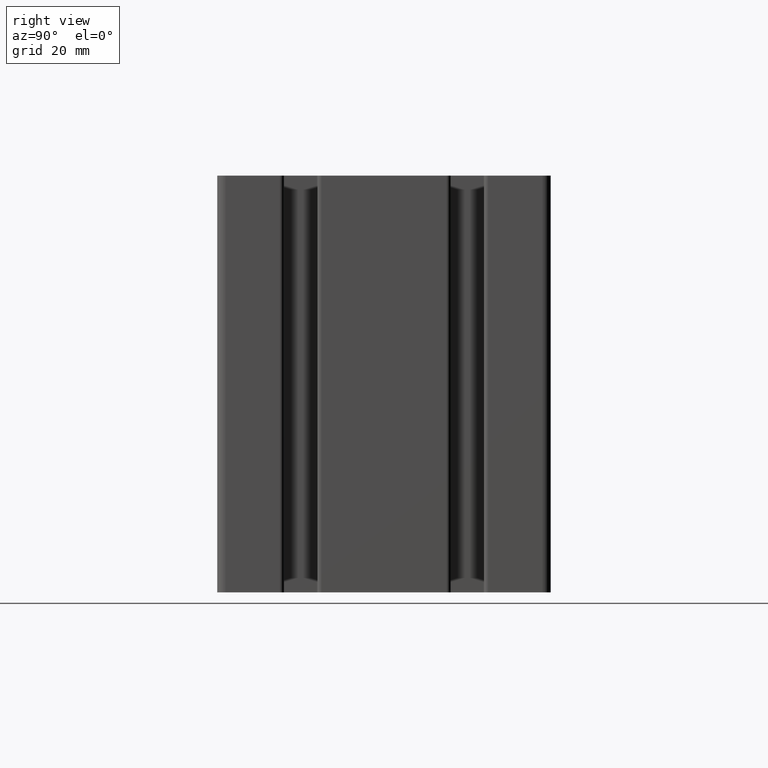
[diagram: clean part render]
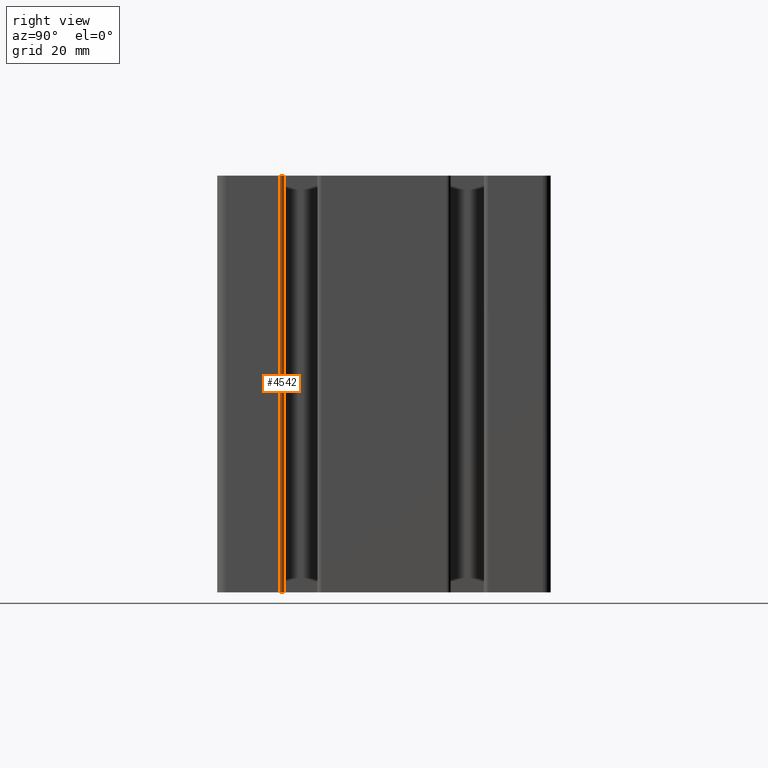
[diagram: same view with one face highlighted and labeled with its STEP entity id]
A machine part, right view. The second image highlights one B-rep face of the part: STEP entity #4542.
In plain terms, the highlighted cylindrical surface (edge-blend (fillet) strip) has radius 1 mm, axis along (0, 0, 1).
Its self-contained STEP definition (entity closure, byte-faithful):
#296=FACE_OUTER_BOUND('',#531,.T.);
#531=EDGE_LOOP('',(#3489,#3490,#3491,#3492));
#919=LINE('',#7394,#1363);
#920=LINE('',#7397,#1364);
#1363=VECTOR('',#6005,100.);
#1364=VECTOR('',#6008,100.);
#1683=CIRCLE('',#4937,0.999999999999968);
#1684=CIRCLE('',#4938,0.999999999999968);
#2069=VERTEX_POINT('',#7390);
#2070=VERTEX_POINT('',#7391);
#2071=VERTEX_POINT('',#7393);
#2072=VERTEX_POINT('',#7395);
#2667=EDGE_CURVE('',#2069,#2070,#1683,.T.);
#2668=EDGE_CURVE('',#2069,#2071,#919,.T.);
#2669=EDGE_CURVE('',#2072,#2071,#1684,.T.);
#2670=EDGE_CURVE('',#2072,#2070,#920,.T.);
#3489=ORIENTED_EDGE('',*,*,#2667,.F.);
#3490=ORIENTED_EDGE('',*,*,#2668,.T.);
#3491=ORIENTED_EDGE('',*,*,#2669,.F.);
#3492=ORIENTED_EDGE('',*,*,#2670,.T.);
#4355=CYLINDRICAL_SURFACE('',#4936,0.999999999999968);
#4542=ADVANCED_FACE('',(#296),#4355,.T.);
#4936=AXIS2_PLACEMENT_3D('',#7389,#6001,#6002);
#4937=AXIS2_PLACEMENT_3D('',#7392,#6003,#6004);
#4938=AXIS2_PLACEMENT_3D('',#7396,#6006,#6007);
#6001=DIRECTION('center_axis',(0.,0.,1.));
#6002=DIRECTION('ref_axis',(-1.,-1.77635683940018E-14,0.));
#6003=DIRECTION('center_axis',(0.,0.,1.));
#6004=DIRECTION('ref_axis',(-1.,-1.77635683940018E-14,0.));
#6005=DIRECTION('',(0.,0.,-1.));
#6006=DIRECTION('center_axis',(0.,0.,-1.));
#6007=DIRECTION('ref_axis',(-1.,-1.77635683940018E-14,0.));
#6008=DIRECTION('',(0.,0.,1.));
#7389=CARTESIAN_POINT('Origin',(59.,-24.9999999999999,0.));
#7390=CARTESIAN_POINT('',(60.0000000000001,-24.9999999999999,100.));
#7391=CARTESIAN_POINT('',(59.0000000000001,-24.,100.));
#7392=CARTESIAN_POINT('Origin',(59.,-24.9999999999999,100.));
#7393=CARTESIAN_POINT('',(60.0000000000001,-24.9999999999999,0.));
#7394=CARTESIAN_POINT('',(60.,-24.9999999999999,0.));
#7395=CARTESIAN_POINT('',(59.0000000000001,-24.,0.));
#7396=CARTESIAN_POINT('Origin',(59.,-24.9999999999999,0.));
#7397=CARTESIAN_POINT('',(59.0000000000001,-24.,0.));